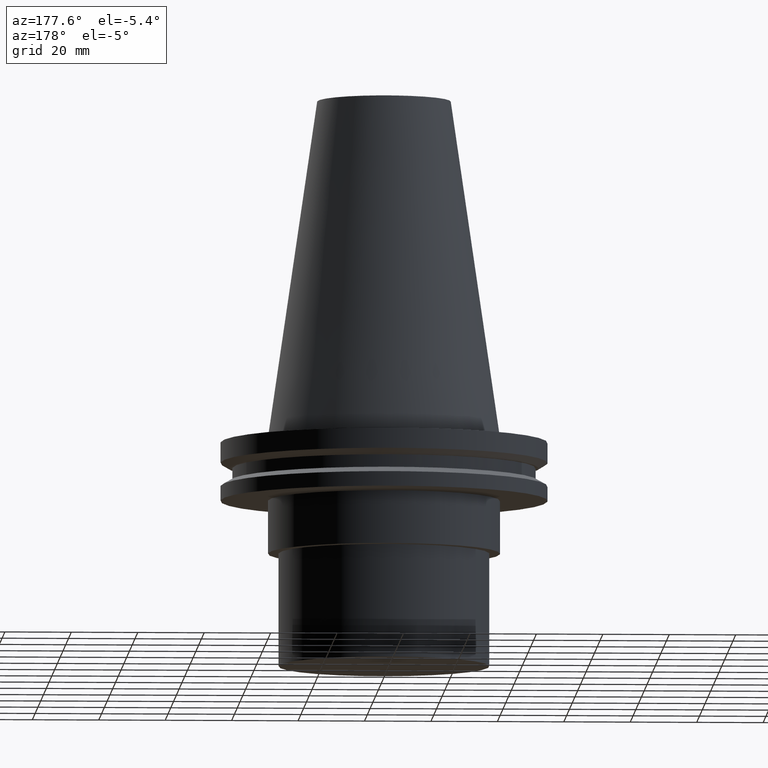
[diagram: clean part render]
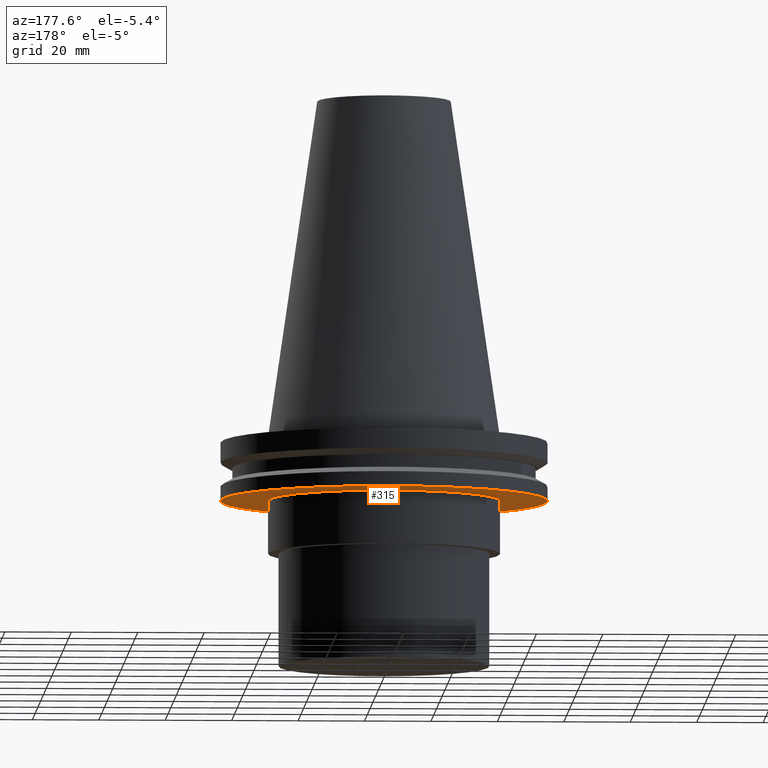
[diagram: same view with one face highlighted and labeled with its STEP entity id]
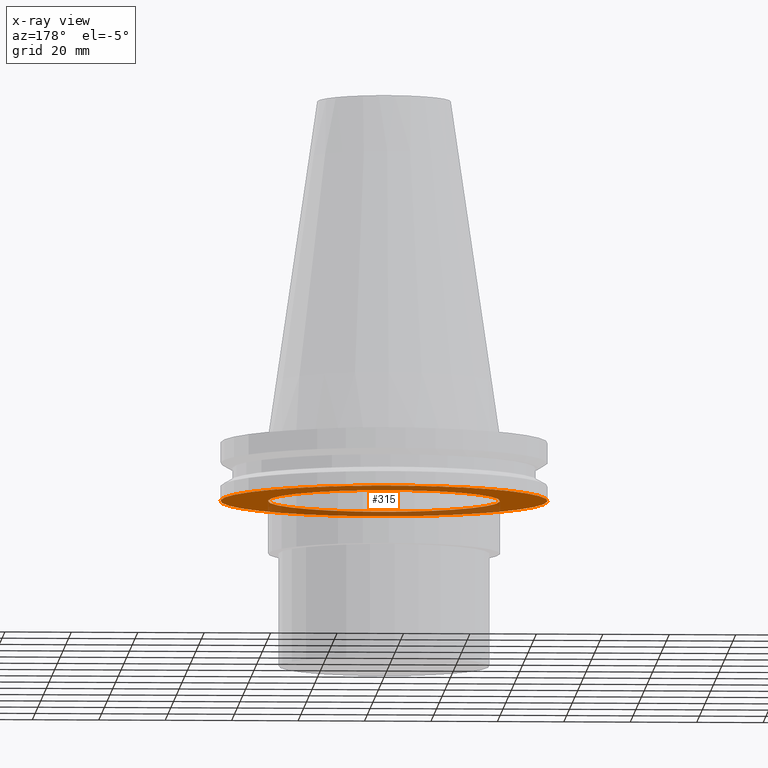
[diagram: x-ray of the same camera — body ghosted, the highlighted face saturated]
A machine part, auxiliary view. The second image highlights one B-rep face of the part: STEP entity #315.
The next image is the same camera in x-ray: the body ghosted, the highlighted face saturated — about 31% of this face is hidden behind the body in this view.
In plain terms, the highlighted planar face has unit normal (0, -0, 1).
Its self-contained STEP definition (entity closure, byte-faithful):
#21 = CARTESIAN_POINT ( 'NONE',  ( 34.92499999999999716, 0.000000000000000000, -19.04999999999999716 ) ) ;
#31 = DIRECTION ( 'NONE',  ( -0.000000000000000000, -0.000000000000000000, 1.000000000000000000 ) ) ;
#35 = EDGE_CURVE ( 'NONE', #169, #169, #241, .T. ) ;
#39 = DIRECTION ( 'NONE',  ( 1.000000000000000000, 0.000000000000000000, 0.000000000000000000 ) ) ;
#66 = EDGE_CURVE ( 'NONE', #283, #283, #70, .T. ) ;
#70 = CIRCLE ( 'NONE', #93, 34.92499999999999716 ) ;
#90 = CARTESIAN_POINT ( 'NONE',  ( 0.000000000000000000, 0.000000000000000000, -19.04999999999999716 ) ) ;
#93 = AXIS2_PLACEMENT_3D ( 'NONE', #175, #182, #201 ) ;
#97 = CARTESIAN_POINT ( 'NONE',  ( 0.000000000000000000, 49.21499999999998920, -19.04999999999999716 ) ) ;
#156 = FACE_BOUND ( 'NONE', #198, .T. ) ;
#169 = VERTEX_POINT ( 'NONE', #255 ) ;
#175 = CARTESIAN_POINT ( 'NONE',  ( 0.000000000000000000, 0.000000000000000000, -19.04999999999999716 ) ) ;
#182 = DIRECTION ( 'NONE',  ( -0.000000000000000000, -0.000000000000000000, 1.000000000000000000 ) ) ;
#198 = EDGE_LOOP ( 'NONE', ( #223 ) ) ;
#201 = DIRECTION ( 'NONE',  ( 1.000000000000000000, 0.000000000000000000, 0.000000000000000000 ) ) ;
#205 = DIRECTION ( 'NONE',  ( 1.000000000000000000, 0.000000000000000000, 0.000000000000000000 ) ) ;
#223 = ORIENTED_EDGE ( 'NONE', *, *, #66, .T. ) ;
#241 = CIRCLE ( 'NONE', #260, 49.21499999999998920 ) ;
#255 = CARTESIAN_POINT ( 'NONE',  ( 49.21499999999998920, 0.000000000000000000, -19.04999999999999716 ) ) ;
#260 = AXIS2_PLACEMENT_3D ( 'NONE', #90, #31, #205 ) ;
#275 = DIRECTION ( 'NONE',  ( 0.000000000000000000, -0.000000000000000000, 1.000000000000000000 ) ) ;
#283 = VERTEX_POINT ( 'NONE', #21 ) ;
#286 = AXIS2_PLACEMENT_3D ( 'NONE', #97, #275, #39 ) ;
#307 = PLANE ( 'NONE',  #286 ) ;
#312 = ORIENTED_EDGE ( 'NONE', *, *, #35, .F. ) ;
#315 = ADVANCED_FACE ( 'NONE', ( #363, #156 ), #307, .F. ) ;
#335 = EDGE_LOOP ( 'NONE', ( #312 ) ) ;
#363 = FACE_OUTER_BOUND ( 'NONE', #335, .T. ) ;